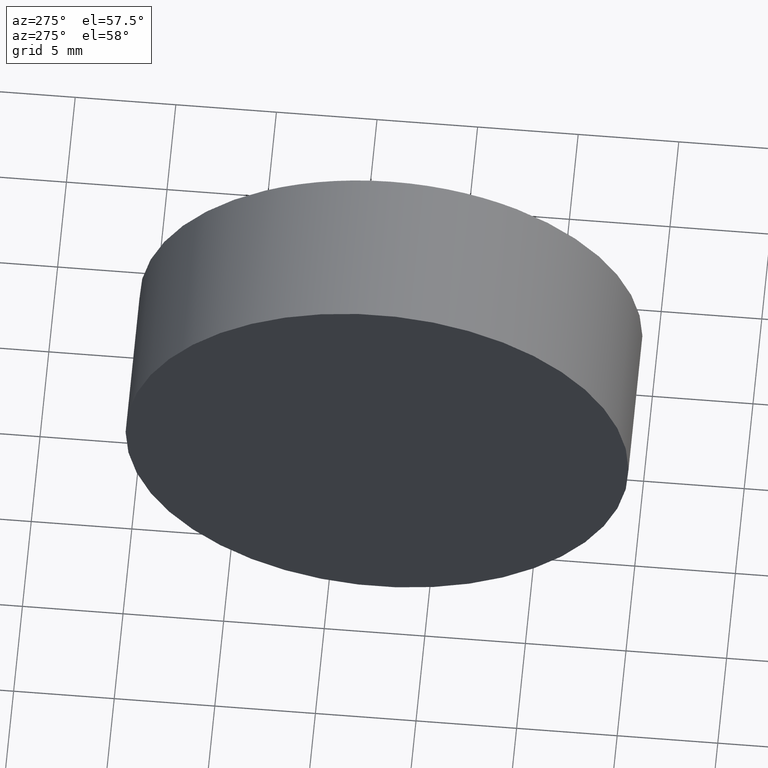
[diagram: clean part render]
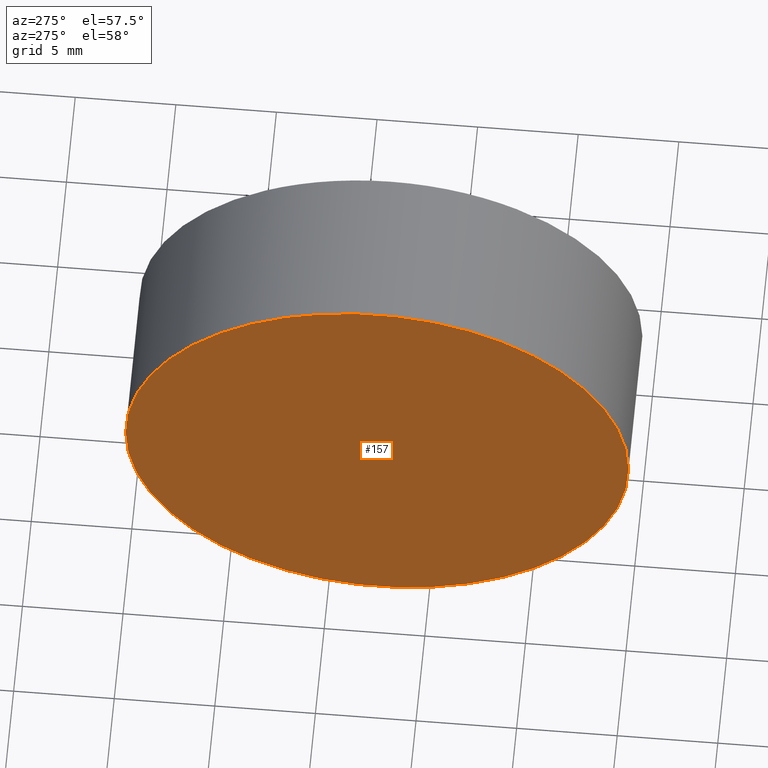
[diagram: same view with one face highlighted and labeled with its STEP entity id]
A machine part, auxiliary view. The second image highlights one B-rep face of the part: STEP entity #157.
In plain terms, the highlighted planar face has unit normal (1, -0, 0).
Its self-contained STEP definition (entity closure, byte-faithful):
#5 = EDGE_CURVE ( 'NONE', #29, #41, #25, .T. ) ;
#9 = CARTESIAN_POINT ( 'NONE',  ( 57.35819015802111700, 45.07872591329309100, 1.530808498934191900E-015 ) ) ;
#10 = DIRECTION ( 'NONE',  ( -5.551115123125784700E-016, -1.000000000000000000, 0.0000000000000000000 ) ) ;
#15 = FACE_OUTER_BOUND ( 'NONE', #132, .T. ) ;
#16 = ORIENTED_EDGE ( 'NONE', *, *, #28, .T. ) ;
#25 = CIRCLE ( 'NONE', #115, 12.49999999999999600 ) ;
#28 = EDGE_CURVE ( 'NONE', #41, #29, #97, .T. ) ;
#29 = VERTEX_POINT ( 'NONE', #62 ) ;
#41 = VERTEX_POINT ( 'NONE', #9 ) ;
#62 = CARTESIAN_POINT ( 'NONE',  ( 57.35819015802110200, 20.07872591329309800, 0.0000000000000000000 ) ) ;
#67 = ORIENTED_EDGE ( 'NONE', *, *, #5, .T. ) ;
#73 = AXIS2_PLACEMENT_3D ( 'NONE', #122, #121, #10 ) ;
#82 = CARTESIAN_POINT ( 'NONE',  ( 57.35819015802111700, 32.57872591329309100, 0.0000000000000000000 ) ) ;
#83 = DIRECTION ( 'NONE',  ( 4.853228644174421400E-016, 1.000000000000000000, 0.0000000000000000000 ) ) ;
#84 = AXIS2_PLACEMENT_3D ( 'NONE', #82, #165, #83 ) ;
#97 = CIRCLE ( 'NONE', #73, 12.49999999999999600 ) ;
#111 = CARTESIAN_POINT ( 'NONE',  ( 57.35819015802111000, 32.57872591329309800, 0.0000000000000000000 ) ) ;
#115 = AXIS2_PLACEMENT_3D ( 'NONE', #111, #150, #120 ) ;
#120 = DIRECTION ( 'NONE',  ( -5.551115123125784700E-016, -1.000000000000000000, 0.0000000000000000000 ) ) ;
#121 = DIRECTION ( 'NONE',  ( -1.000000000000000000, 4.853228644174421400E-016, -0.0000000000000000000 ) ) ;
#122 = CARTESIAN_POINT ( 'NONE',  ( 57.35819015802111000, 32.57872591329309800, 0.0000000000000000000 ) ) ;
#132 = EDGE_LOOP ( 'NONE', ( #67, #16 ) ) ;
#150 = DIRECTION ( 'NONE',  ( -1.000000000000000000, 4.853228644174421400E-016, -0.0000000000000000000 ) ) ;
#157 = ADVANCED_FACE ( 'NONE', ( #15 ), #166, .F. ) ;
#165 = DIRECTION ( 'NONE',  ( 1.000000000000000000, -4.853228644174421400E-016, 0.0000000000000000000 ) ) ;
#166 = PLANE ( 'NONE',  #84 ) ;